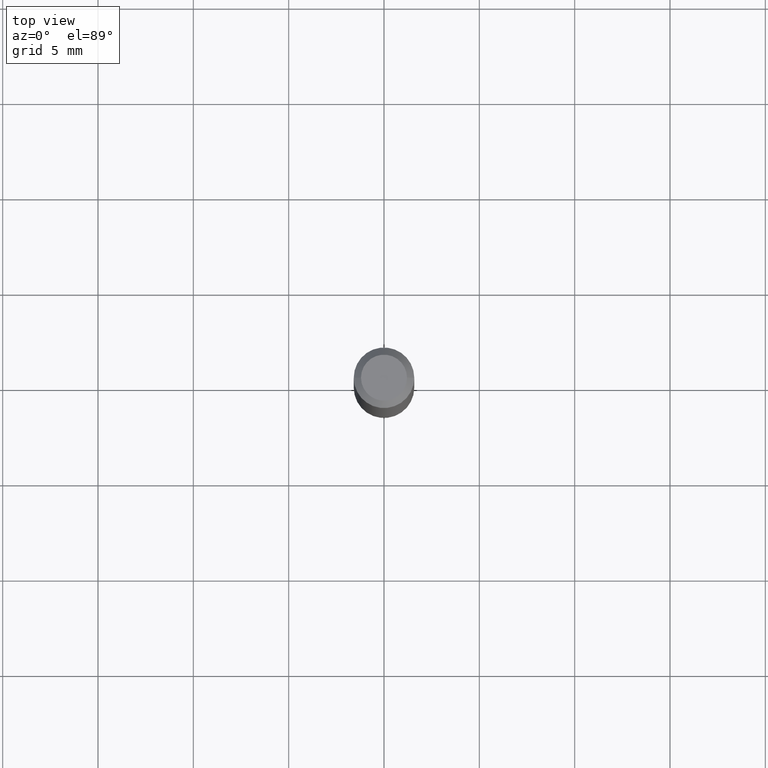
[diagram: clean part render]
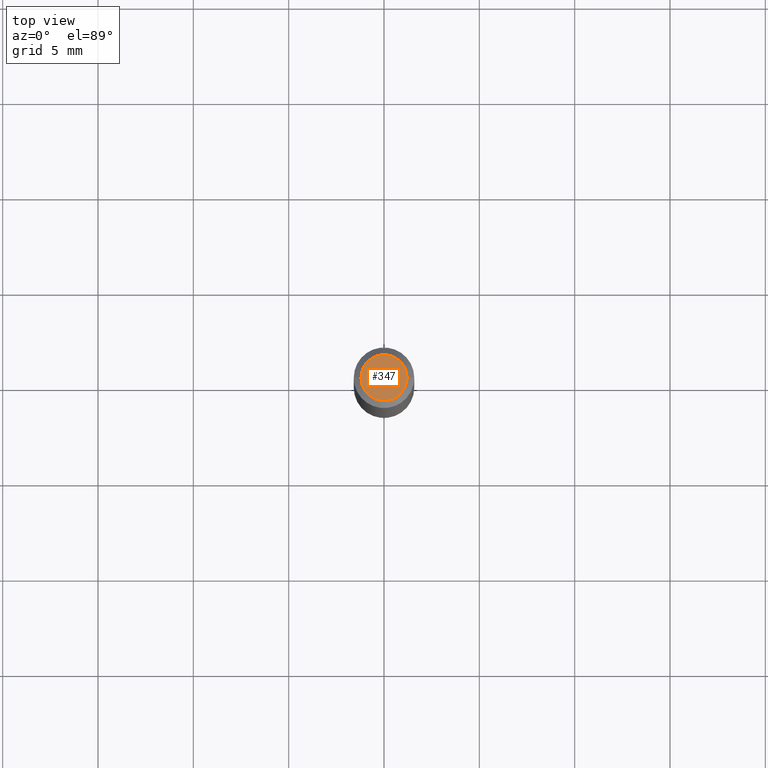
[diagram: same view with one face highlighted and labeled with its STEP entity id]
A machine part, top view. The second image highlights one B-rep face of the part: STEP entity #347.
In plain terms, the highlighted planar face has unit normal (0, -0, -1).
Its self-contained STEP definition (entity closure, byte-faithful):
#46 = CIRCLE ( 'NONE', #168, 0.04749999999999999362 ) ;
#51 = FACE_OUTER_BOUND ( 'NONE', #141, .T. ) ;
#74 = EDGE_CURVE ( 'NONE', #90, #134, #219, .T. ) ;
#83 = AXIS2_PLACEMENT_3D ( 'NONE', #169, #123, #100 ) ;
#90 = VERTEX_POINT ( 'NONE', #417 ) ;
#100 = DIRECTION ( 'NONE',  ( 1.000000000000000000, -6.982962677686267499E-15, 4.852736867747366768E-29 ) ) ;
#123 = DIRECTION ( 'NONE',  ( -2.445468806185136597E-29, 3.491481338843145583E-15, 1.000000000000000000 ) ) ;
#132 = DIRECTION ( 'NONE',  ( -2.445468806185136597E-29, 3.491481338843145583E-15, 1.000000000000000000 ) ) ;
#134 = VERTEX_POINT ( 'NONE', #426 ) ;
#141 = EDGE_LOOP ( 'NONE', ( #311, #287 ) ) ;
#168 = AXIS2_PLACEMENT_3D ( 'NONE', #307, #132, #202 ) ;
#169 = CARTESIAN_POINT ( 'NONE',  ( -6.039856226162565090E-45, 8.623313963198306787E-31, 2.469815280770059421E-16 ) ) ;
#202 = DIRECTION ( 'NONE',  ( 1.000000000000000000, -6.982962677686267499E-15, 4.852736867747366768E-29 ) ) ;
#219 = CIRCLE ( 'NONE', #83, 0.04749999999999999362 ) ;
#287 = ORIENTED_EDGE ( 'NONE', *, *, #424, .T. ) ;
#302 = CARTESIAN_POINT ( 'NONE',  ( 3.316907271900976096E-16, 0.04749999999999999362, -4.235459955654642541E-17 ) ) ;
#307 = CARTESIAN_POINT ( 'NONE',  ( -6.039856226162565090E-45, 8.623313963198306787E-31, 2.469815280770059421E-16 ) ) ;
#311 = ORIENTED_EDGE ( 'NONE', *, *, #74, .T. ) ;
#347 = ADVANCED_FACE ( 'NONE', ( #51 ), #434, .F. ) ;
#359 = AXIS2_PLACEMENT_3D ( 'NONE', #302, #365, #361 ) ;
#361 = DIRECTION ( 'NONE',  ( -1.000000000000000000, 6.982962677686265922E-15, -4.876176775795935793E-29 ) ) ;
#365 = DIRECTION ( 'NONE',  ( 2.438088387897960049E-29, -3.491481338843145188E-15, -1.000000000000000000 ) ) ;
#417 = CARTESIAN_POINT ( 'NONE',  ( -0.04749999999999999362, 3.578768372314215436E-16, 2.469815280770035755E-16 ) ) ;
#424 = EDGE_CURVE ( 'NONE', #134, #90, #46, .T. ) ;
#426 = CARTESIAN_POINT ( 'NONE',  ( 0.04749999999999999362, -4.035134999187574186E-16, 2.469815280770085059E-16 ) ) ;
#434 = PLANE ( 'NONE',  #359 ) ;